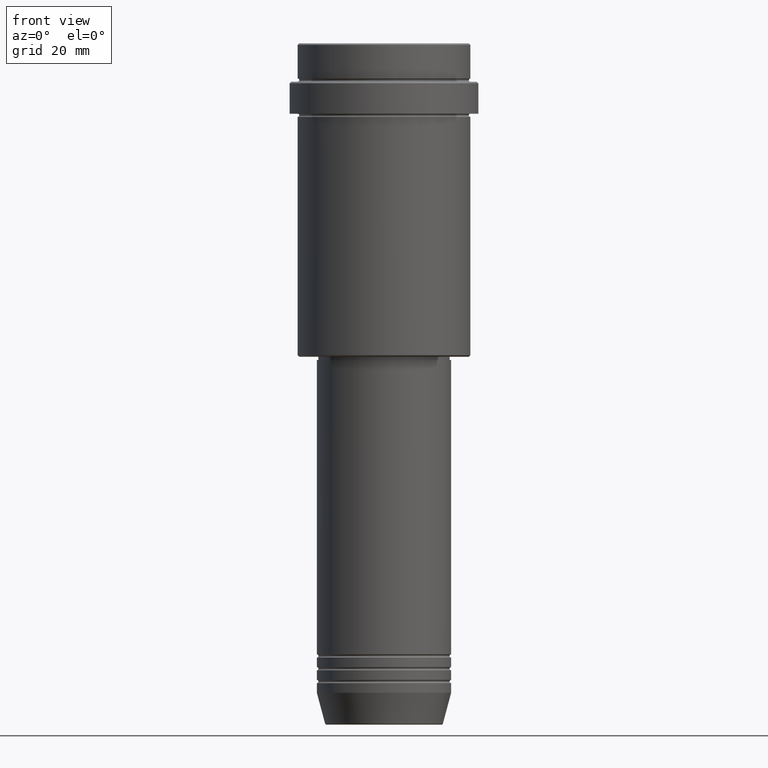
[diagram: clean part render]
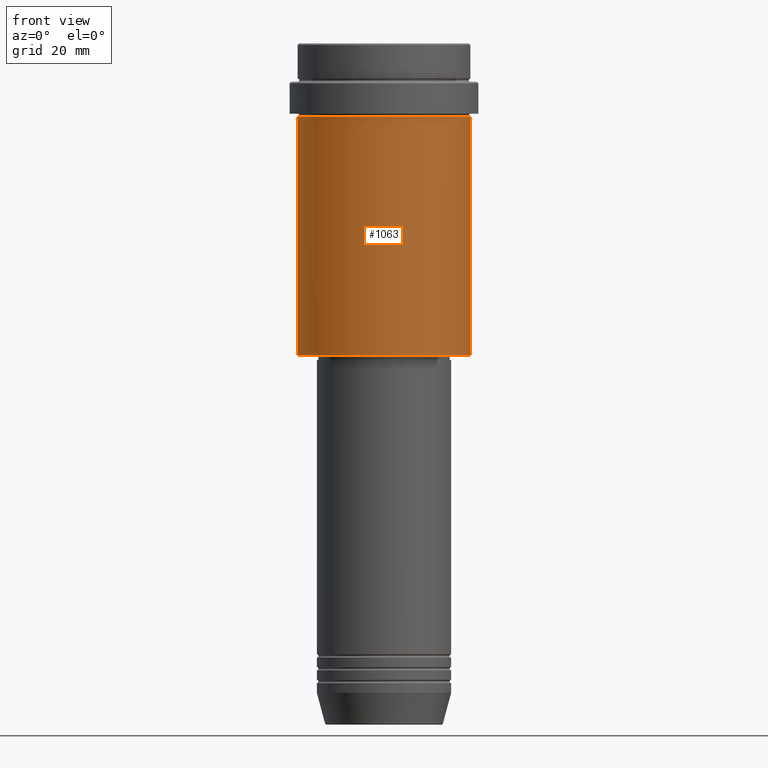
[diagram: same view with one face highlighted and labeled with its STEP entity id]
A machine part, front view. The second image highlights one B-rep face of the part: STEP entity #1063.
In plain terms, the highlighted cylindrical surface (partial cylindrical patch) has radius 27 mm, axis along (-0, -0, 1).
Its self-contained STEP definition (entity closure, byte-faithful):
#27 = AXIS2_PLACEMENT_3D ( 'NONE', #344, #800, #1338 ) ;
#48 = DIRECTION ( 'NONE',  ( -0.000000000000000000, -0.000000000000000000, 1.000000000000000000 ) ) ;
#61 = LINE ( 'NONE', #1351, #382 ) ;
#157 = DIRECTION ( 'NONE',  ( -0.000000000000000000, -0.000000000000000000, 1.000000000000000000 ) ) ;
#161 = CIRCLE ( 'NONE', #909, 27.00000000000000355 ) ;
#216 = EDGE_CURVE ( 'NONE', #356, #857, #593, .T. ) ;
#239 = CARTESIAN_POINT ( 'NONE',  ( 0.000000000000000000, 0.000000000000000000, -97.49999999999995737 ) ) ;
#246 = DIRECTION ( 'NONE',  ( -0.000000000000000000, -0.000000000000000000, 1.000000000000000000 ) ) ;
#302 = CARTESIAN_POINT ( 'NONE',  ( -27.00000000000000355, 3.306546357697854128E-15, -23.00000000000001421 ) ) ;
#306 = CARTESIAN_POINT ( 'NONE',  ( -27.00000000000000355, 3.306546357697854128E-15, 0.000000000000000000 ) ) ;
#344 = CARTESIAN_POINT ( 'NONE',  ( 0.000000000000000000, 0.000000000000000000, 0.000000000000000000 ) ) ;
#356 = VERTEX_POINT ( 'NONE', #302 ) ;
#382 = VECTOR ( 'NONE', #157, 1000.000000000000000 ) ;
#461 = DIRECTION ( 'NONE',  ( -1.000000000000000000, 0.000000000000000000, 0.000000000000000000 ) ) ;
#528 = ORIENTED_EDGE ( 'NONE', *, *, #216, .F. ) ;
#593 = CIRCLE ( 'NONE', #941, 27.00000000000000355 ) ;
#642 = EDGE_LOOP ( 'NONE', ( #1243, #1249, #1041, #528 ) ) ;
#743 = VERTEX_POINT ( 'NONE', #1149 ) ;
#800 = DIRECTION ( 'NONE',  ( -0.000000000000000000, -0.000000000000000000, 1.000000000000000000 ) ) ;
#857 = VERTEX_POINT ( 'NONE', #1284 ) ;
#899 = CARTESIAN_POINT ( 'NONE',  ( 27.00000000000000355, 0.000000000000000000, -97.49999999999995737 ) ) ;
#903 = EDGE_CURVE ( 'NONE', #743, #356, #1298, .T. ) ;
#909 = AXIS2_PLACEMENT_3D ( 'NONE', #239, #48, #461 ) ;
#932 = CARTESIAN_POINT ( 'NONE',  ( 0.000000000000000000, 0.000000000000000000, -23.00000000000001421 ) ) ;
#941 = AXIS2_PLACEMENT_3D ( 'NONE', #932, #246, #1358 ) ;
#1000 = EDGE_CURVE ( 'NONE', #743, #1053, #161, .T. ) ;
#1041 = ORIENTED_EDGE ( 'NONE', *, *, #1138, .T. ) ;
#1053 = VERTEX_POINT ( 'NONE', #899 ) ;
#1063 = ADVANCED_FACE ( 'NONE', ( #1108 ), #1322, .T. ) ;
#1095 = VECTOR ( 'NONE', #1400, 1000.000000000000000 ) ;
#1108 = FACE_OUTER_BOUND ( 'NONE', #642, .T. ) ;
#1138 = EDGE_CURVE ( 'NONE', #1053, #857, #61, .T. ) ;
#1149 = CARTESIAN_POINT ( 'NONE',  ( -27.00000000000000355, 3.306546357697854128E-15, -97.49999999999995737 ) ) ;
#1243 = ORIENTED_EDGE ( 'NONE', *, *, #903, .F. ) ;
#1249 = ORIENTED_EDGE ( 'NONE', *, *, #1000, .T. ) ;
#1284 = CARTESIAN_POINT ( 'NONE',  ( 27.00000000000000355, 0.000000000000000000, -23.00000000000001421 ) ) ;
#1298 = LINE ( 'NONE', #306, #1095 ) ;
#1322 = CYLINDRICAL_SURFACE ( 'NONE', #27, 27.00000000000000355 ) ;
#1338 = DIRECTION ( 'NONE',  ( 1.000000000000000000, 0.000000000000000000, 0.000000000000000000 ) ) ;
#1351 = CARTESIAN_POINT ( 'NONE',  ( 27.00000000000000355, 0.000000000000000000, 0.000000000000000000 ) ) ;
#1358 = DIRECTION ( 'NONE',  ( 1.000000000000000000, 0.000000000000000000, 0.000000000000000000 ) ) ;
#1400 = DIRECTION ( 'NONE',  ( -0.000000000000000000, -0.000000000000000000, 1.000000000000000000 ) ) ;